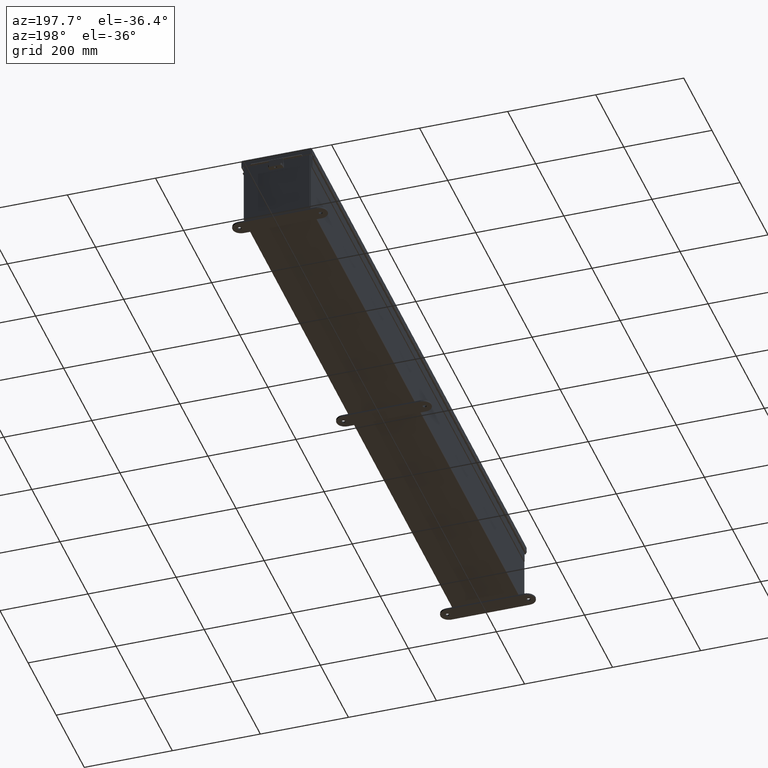
[diagram: clean part render]
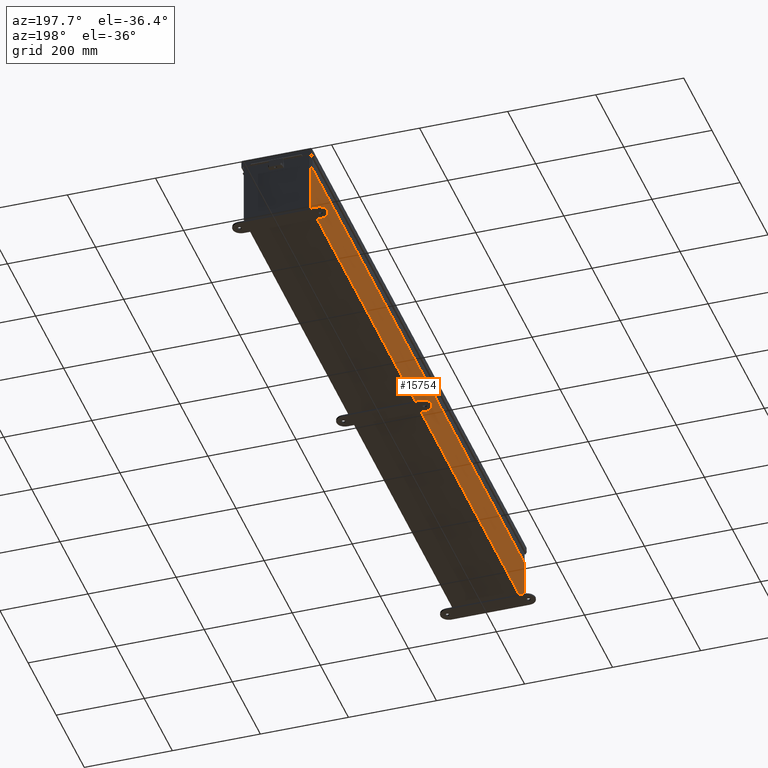
[diagram: same view with one face highlighted and labeled with its STEP entity id]
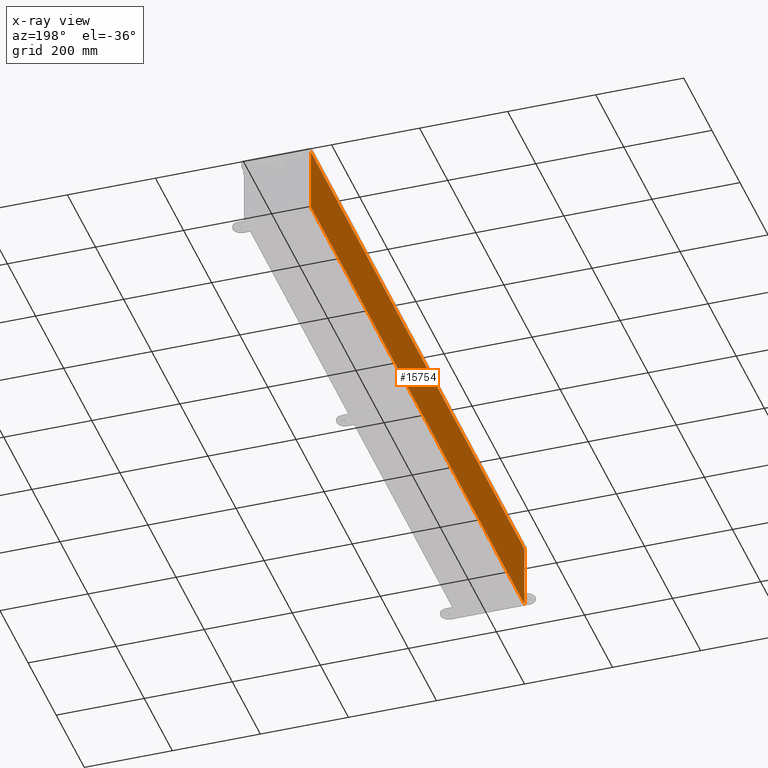
[diagram: x-ray of the same camera — body ghosted, the highlighted face saturated]
A machine part, auxiliary view. The second image highlights one B-rep face of the part: STEP entity #15754.
The next image is the same camera in x-ray: the body ghosted, the highlighted face saturated — about 0% of this face is hidden behind the body in this view.
In plain terms, the highlighted planar face has unit normal (1, 0, 0).
Its self-contained STEP definition (entity closure, byte-faithful):
#70 = DIRECTION ( 'NONE',  ( 3.455316574900958600E-015, 0.0000000000000000000, -1.000000000000000000 ) ) ;
#733 = DIRECTION ( 'NONE',  ( -3.455316574900958600E-015, 7.470954756542614900E-016, 1.000000000000000000 ) ) ;
#1720 = ORIENTED_EDGE ( 'NONE', *, *, #35855, .T. ) ;
#4388 = AXIS2_PLACEMENT_3D ( 'NONE', #43318, #20101, #70 ) ;
#5448 = DIRECTION ( 'NONE',  ( 0.0000000000000000000, 1.000000000000000000, 0.0000000000000000000 ) ) ;
#6453 = CARTESIAN_POINT ( 'NONE',  ( -2.999999999999996400, 29.92529999999998600, 0.01299999999999984300 ) ) ;
#8969 = ORIENTED_EDGE ( 'NONE', *, *, #16271, .F. ) ;
#9387 = DIRECTION ( 'NONE',  ( 3.455316574900958600E-015, 0.0000000000000000000, -1.000000000000000000 ) ) ;
#9987 = PLANE ( 'NONE',  #4388 ) ;
#10368 = LINE ( 'NONE', #15982, #19275 ) ;
#11653 = LINE ( 'NONE', #14004, #27396 ) ;
#11959 = CARTESIAN_POINT ( 'NONE',  ( -3.000000000000016400, -29.92529999999998900, 5.837599999999999200 ) ) ;
#14004 = CARTESIAN_POINT ( 'NONE',  ( -2.999999999999996400, -29.92529999999999300, 1.172987232279593000E-014 ) ) ;
#14865 = VECTOR ( 'NONE', #5448, 39.37007874015748100 ) ;
#15754 = ADVANCED_FACE ( 'NONE', ( #29417 ), #9987, .F. ) ;
#15982 = CARTESIAN_POINT ( 'NONE',  ( -2.999999999999996400, 29.92529999999998600, -1.062859610035002400E-014 ) ) ;
#16271 = EDGE_CURVE ( 'NONE', #37659, #29965, #25763, .T. ) ;
#19275 = VECTOR ( 'NONE', #9387, 39.37007874015748100 ) ;
#20101 = DIRECTION ( 'NONE',  ( 1.000000000000000000, 0.0000000000000000000, 3.455316574900958600E-015 ) ) ;
#21062 = EDGE_LOOP ( 'NONE', ( #1720, #41160, #8969, #40751 ) ) ;
#22140 = CARTESIAN_POINT ( 'NONE',  ( -3.000000000000016400, -29.92529999999998900, 5.837599999999999200 ) ) ;
#22562 = CARTESIAN_POINT ( 'NONE',  ( -2.999999999999996400, -29.92529999999998900, 0.01299999999999656500 ) ) ;
#22735 = LINE ( 'NONE', #22140, #14865 ) ;
#23094 = VERTEX_POINT ( 'NONE', #11959 ) ;
#24699 = VECTOR ( 'NONE', #26556, 39.37007874015748100 ) ;
#25763 = LINE ( 'NONE', #6453, #24699 ) ;
#26556 = DIRECTION ( 'NONE',  ( -1.892592485813288300E-031, 1.000000000000000000, 5.477334550358923700E-017 ) ) ;
#27396 = VECTOR ( 'NONE', #733, 39.37007874015748100 ) ;
#29343 = CARTESIAN_POINT ( 'NONE',  ( -3.000000000000016400, 29.92529999999998200, 5.837599999999999200 ) ) ;
#29417 = FACE_OUTER_BOUND ( 'NONE', #21062, .T. ) ;
#29965 = VERTEX_POINT ( 'NONE', #33751 ) ;
#31351 = EDGE_CURVE ( 'NONE', #37659, #23094, #11653, .T. ) ;
#33751 = CARTESIAN_POINT ( 'NONE',  ( -2.999999999999996400, 29.92529999999998600, 0.01300000000000066200 ) ) ;
#35855 = EDGE_CURVE ( 'NONE', #23094, #42367, #22735, .T. ) ;
#37659 = VERTEX_POINT ( 'NONE', #22562 ) ;
#40751 = ORIENTED_EDGE ( 'NONE', *, *, #31351, .T. ) ;
#41160 = ORIENTED_EDGE ( 'NONE', *, *, #42376, .T. ) ;
#42367 = VERTEX_POINT ( 'NONE', #29343 ) ;
#42376 = EDGE_CURVE ( 'NONE', #42367, #29965, #10368, .T. ) ;
#43318 = CARTESIAN_POINT ( 'NONE',  ( -2.999999999999996400, 0.0000000000000000000, -1.062859610035002400E-014 ) ) ;